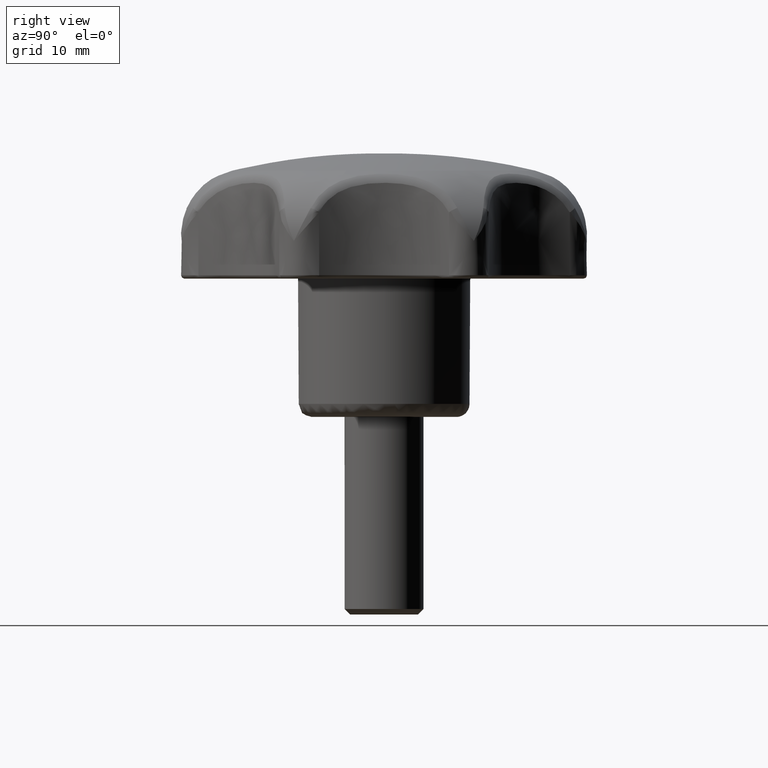
[diagram: clean part render]
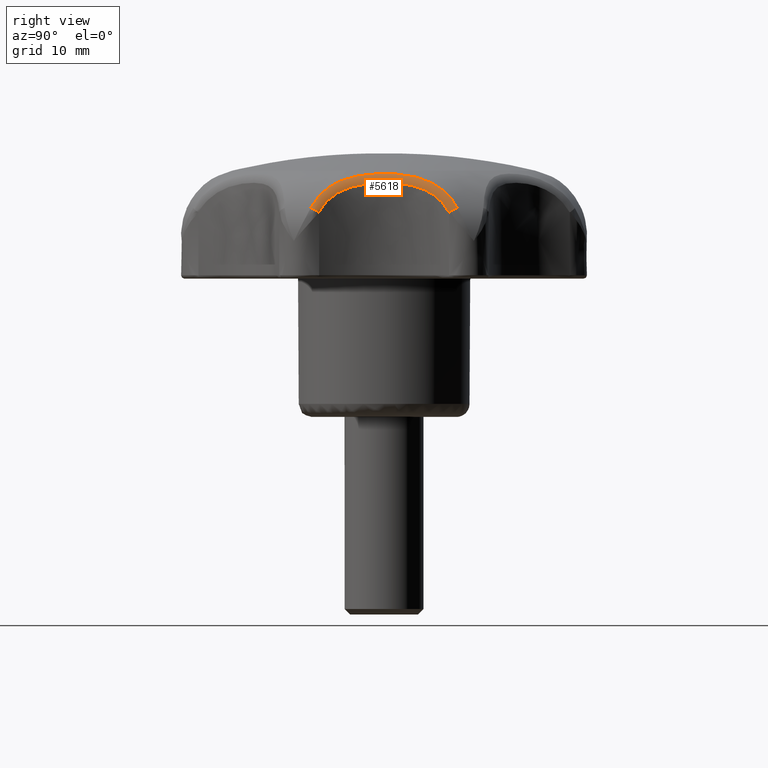
[diagram: same view with one face highlighted and labeled with its STEP entity id]
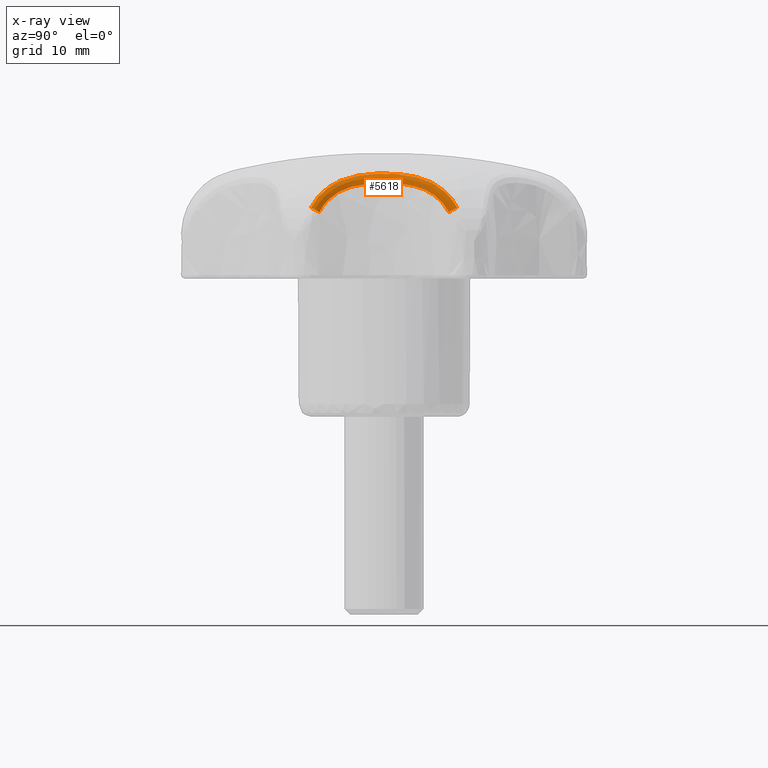
[diagram: x-ray of the same camera — body ghosted, the highlighted face saturated]
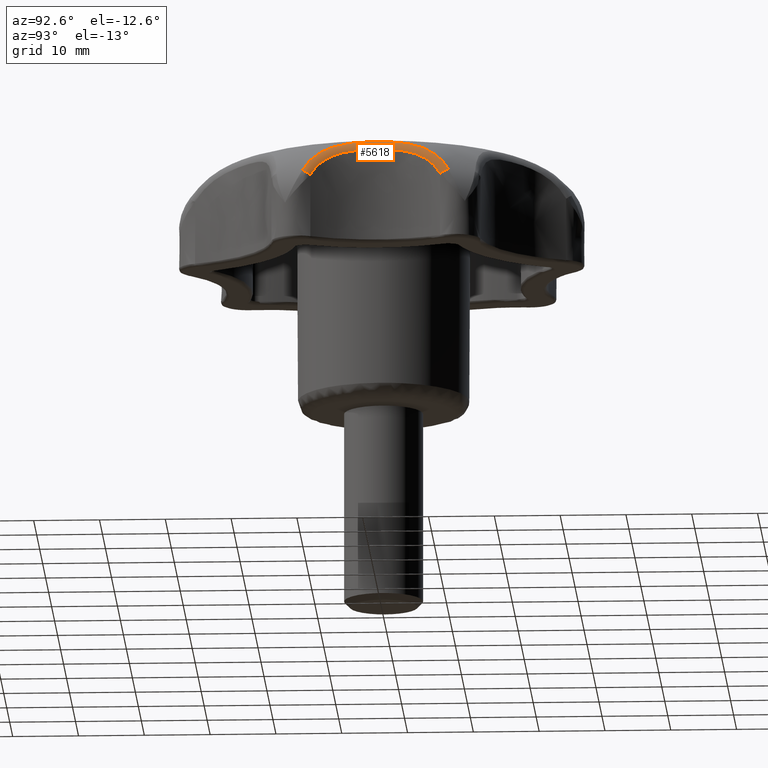
[diagram: same view with one face highlighted and labeled with its STEP entity id]
A machine part, right view. The second image highlights one B-rep face of the part: STEP entity #5618.
The next image is the same camera in x-ray: the body ghosted, the highlighted face saturated — about 0% of this face is hidden behind the body in this view.
A second angle (auxiliary view) of the same face is appended — the face is thin or edge-on in the first view.
In plain terms, the highlighted face is a freeform B-spline surface patch.
Its self-contained STEP definition (entity closure, byte-faithful):
#1544=CARTESIAN_POINT('',(28.153142153876001,-11.124537814935840,31.738453086347850));
#1545=VERTEX_POINT('',#1544);
#1569=CARTESIAN_POINT('',(25.774854229980559,-6.617860819175672,35.833077727599111));
#1570=VERTEX_POINT('',#1569);
#1571=CARTESIAN_POINT('',(28.153142153876001,-11.124537814935840,31.738453086347850));
#1572=CARTESIAN_POINT('',(27.983336311974639,-10.872890398628840,32.222789999707203));
#1573=CARTESIAN_POINT('',(27.796456010173440,-10.586079334655400,32.672247194585317));
#1574=CARTESIAN_POINT('',(27.498813905014941,-10.102483838967480,33.297504908314060));
#1575=CARTESIAN_POINT('',(27.396700256864172,-9.932345959672539,33.497730732627232));
#1576=CARTESIAN_POINT('',(27.240179358642930,-9.663304796960018,33.785921144808263));
#1577=CARTESIAN_POINT('',(27.187447468544491,-9.571316480585006,33.879958277067118));
#1578=CARTESIAN_POINT('',(27.081038538714381,-9.382627225881288,34.063985972793581));
#1579=CARTESIAN_POINT('',(27.027241024069632,-9.285704072014717,34.154170093536038));
#1580=CARTESIAN_POINT('',(26.757891316591351,-8.791891914974391,34.592453970331377));
#1581=CARTESIAN_POINT('',(26.542503512187999,-8.369892582188392,34.901046384835134));
#1582=CARTESIAN_POINT('',(26.228326285983400,-7.697462314954816,35.308921317555907));
#1583=CARTESIAN_POINT('',(26.125080763524320,-7.466728613753284,35.435679076649137));
#1584=CARTESIAN_POINT('',(25.973545457948301,-7.110729636869822,35.612817868846129));
#1585=CARTESIAN_POINT('',(25.923589575206481,-6.990412766921630,35.669696852874893));
#1586=CARTESIAN_POINT('',(25.840765662339479,-6.785515028995780,35.761709269993979));
#1587=CARTESIAN_POINT('',(25.807579797583291,-6.701898491574642,35.797936076928693));
#1588=CARTESIAN_POINT('',(25.774854229980559,-6.617860819175672,35.833077727599111));
#1589=B_SPLINE_CURVE_WITH_KNOTS('',3,(#1571,#1572,#1573,#1574,#1575,#1576,#1577,#1578,#1579,#1580,#1581,#1582,#1583,#1584,#1585,#1586,#1587,#1588),.UNSPECIFIED.,.F.,.U.,(4,2,2,2,2,2,2,2,4),(0.0,0.062500000000000,0.093749999999999,0.109375000000000,0.125000000000000,0.187500000000000,0.218750000000000,0.234375000000000,0.244997817542193),.UNSPECIFIED.);
#1590=EDGE_CURVE('',#1545,#1570,#1589,.T.);
#1698=CARTESIAN_POINT('',(28.153141974699800,11.124537656981079,31.738453520942549));
#1699=VERTEX_POINT('',#1698);
#1700=CARTESIAN_POINT('',(25.774854229980559,-6.617860819175672,35.833077727599111));
#1701=CARTESIAN_POINT('',(25.759444087181599,-6.578288279672262,35.849625581708111));
#1702=CARTESIAN_POINT('',(25.744136009617922,-6.538622358662484,35.865932815734503));
#1703=CARTESIAN_POINT('',(25.539115727425258,-6.002470097884818,36.082641064061058));
#1704=CARTESIAN_POINT('',(25.365743759401180,-5.492161543483544,36.246454383325641));
#1705=CARTESIAN_POINT('',(25.059363806589410,-4.445642713727366,36.516100361467089));
#1706=CARTESIAN_POINT('',(24.926344617561661,-3.909430726870049,36.621913810432439));
#1707=CARTESIAN_POINT('',(24.790041912448569,-3.223413730551197,36.724933486431887));
#1708=CARTESIAN_POINT('',(24.764280695744741,-3.085419815502458,36.744064345744007));
#1709=CARTESIAN_POINT('',(24.715879174474232,-2.807849632642465,36.779510222137581));
#1710=CARTESIAN_POINT('',(24.693207882287741,-2.668044984769865,36.795846994307503));
#1711=CARTESIAN_POINT('',(24.630422170415240,-2.248787242154130,36.840543205653020));
#1712=CARTESIAN_POINT('',(24.595434990322701,-1.969047619687009,36.864682583385623));
#1713=CARTESIAN_POINT('',(24.511276157202541,-1.129149064349501,36.921956625321897));
#1714=CARTESIAN_POINT('',(24.482922059215891,-0.568313907086514,36.940195809009751));
#1715=CARTESIAN_POINT('',(24.482482001313489,0.555122216129877,36.940484238180758));
#1716=CARTESIAN_POINT('',(24.510394662559641,1.117723002728837,36.922543310921910));
#1717=CARTESIAN_POINT('',(24.580649953096259,1.822123738192095,36.874747614525532));
#1718=CARTESIAN_POINT('',(24.596487490171420,1.963207343277363,36.863886216217452));
#1719=CARTESIAN_POINT('',(24.631592090166428,2.244666665727706,36.839508020985612));
#1720=CARTESIAN_POINT('',(24.650851021985680,2.385014533216566,36.825996987569063));
#1721=CARTESIAN_POINT('',(24.713649848589931,2.804906667139449,36.781300779169307));
#1722=CARTESIAN_POINT('',(24.762299468305802,3.083613074853640,36.745894720624868));
#1723=CARTESIAN_POINT('',(24.926080725294160,3.908432486312932,36.622126820652767));
#1724=CARTESIAN_POINT('',(25.059274317666230,4.445338261829134,36.516179784501652));
#1725=CARTESIAN_POINT('',(25.365862155421940,5.492556867876647,36.246349476116322));
#1726=CARTESIAN_POINT('',(25.539267901297599,6.002870658428257,36.082482534248953));
#1727=CARTESIAN_POINT('',(25.776402850242381,6.622998411859203,35.831826077213897));
#1728=CARTESIAN_POINT('',(25.824919091733971,6.746306189124715,35.779313071154689));
#1729=CARTESIAN_POINT('',(25.923548457033711,6.990309785242545,35.669743701602073));
#1730=CARTESIAN_POINT('',(25.973502107446151,7.110622034692645,35.612867566186210));
#1731=CARTESIAN_POINT('',(26.124988691813350,7.466513857009258,35.435789344361510));
#1732=CARTESIAN_POINT('',(26.228145442433210,7.697051720617301,35.309140989065170));
#1733=CARTESIAN_POINT('',(26.541869700071839,8.368574898784630,34.901900249015583));
#1734=CARTESIAN_POINT('',(26.756702235242528,8.789542015362175,34.594129395923929));
#1735=CARTESIAN_POINT('',(27.025045584979729,9.281718501726674,34.157806318389973));
#1736=CARTESIAN_POINT('',(27.078803061977680,9.378622265979143,34.067778866765330));
#1737=CARTESIAN_POINT('',(27.185637767297020,9.568144044221878,33.883159277828021));
#1738=CARTESIAN_POINT('',(27.238565023425590,9.660503476546126,33.788836875987911));
#1739=CARTESIAN_POINT('',(27.395619581574032,9.930536743411459,33.499832525461663));
#1740=CARTESIAN_POINT('',(27.498018846873951,10.101174658498049,33.299119834326000));
#1741=CARTESIAN_POINT('',(27.796317832718699,10.585887203642709,32.672648422766123));
#1742=CARTESIAN_POINT('',(27.983365596759182,10.872933552375240,32.222706591728027));
#1743=CARTESIAN_POINT('',(28.153141974699800,11.124537656981079,31.738453520942549));
#1744=B_SPLINE_CURVE_WITH_KNOTS('',3,(#1700,#1701,#1702,#1703,#1704,#1705,#1706,#1707,#1708,#1709,#1710,#1711,#1712,#1713,#1714,#1715,#1716,#1717,#1718,#1719,#1720,#1721,#1722,#1723,#1724,#1725,#1726,#1727,#1728,#1729,#1730,#1731,#1732,#1733,#1734,#1735,#1736,#1737,#1738,#1739,#1740,#1741,#1742,#1743),.UNSPECIFIED.,.F.,.U.,(4,2,2,2,2,2,2,2,2,2,2,2,2,2,2,2,2,2,2,2,2,4),(0.244997817542193,0.250000000000000,0.312500000000000,0.375000000000001,0.390625000000001,0.406250000000001,0.437500000000001,0.500000000000001,0.562500000000001,0.578125000000001,0.593750000000001,0.625000000000001,0.687500000000002,0.750000000000002,0.765625000000002,0.781250000000002,0.812500000000002,0.875000000000002,0.890625000000002,0.906250000000002,0.937500000000001,1.0),.UNSPECIFIED.);
#1745=EDGE_CURVE('',#1570,#1699,#1744,.T.);
#5271=CARTESIAN_POINT('',(28.196289402870502,9.856706647020470,31.049571731975849));
#5272=VERTEX_POINT('',#5271);
#5273=CARTESIAN_POINT('',(28.153141974699778,11.124537656981071,31.738453520942532));
#5274=CARTESIAN_POINT('',(28.554587045992339,10.447161604288810,31.497791102452219));
#5275=CARTESIAN_POINT('',(28.196289402870502,9.856706647020470,31.049571731975849));
#5283=(BOUNDED_CURVE()B_SPLINE_CURVE(2,(#5273,#5274,#5275),.UNSPECIFIED.,.F.,.U.)CURVE()GEOMETRIC_REPRESENTATION_ITEM()QUASI_UNIFORM_CURVE()RATIONAL_B_SPLINE_CURVE((1.0,0.876621336626192,1.0))REPRESENTATION_ITEM(''));
#5284=EDGE_CURVE('',#1699,#5272,#5283,.T.);
#5319=CARTESIAN_POINT('',(28.226234984048009,-9.906097104292490,30.938719719100401));
#5320=CARTESIAN_POINT('',(28.215144676728563,-9.887806958336782,30.974283567835563));
#5321=CARTESIAN_POINT('',(28.204054371534681,-9.869516815886522,31.009847409754627));
#5322=CARTESIAN_POINT('',(28.054335458436352,-9.622600234224519,31.489958611802532));
#5323=CARTESIAN_POINT('',(27.901939561392343,-9.360479996064180,31.898246180000069));
#5324=CARTESIAN_POINT('',(27.661408351677352,-8.917418529664662,32.460620383877043));
#5325=CARTESIAN_POINT('',(27.579224944334022,-8.761372102470494,32.639697865719839));
#5326=CARTESIAN_POINT('',(27.412212943534197,-8.432198580592379,32.981429784780275));
#5327=CARTESIAN_POINT('',(27.326944540282344,-8.258114473730569,33.144845159428606));
#5328=CARTESIAN_POINT('',(27.073087615704253,-7.717675619810350,33.603966225421821));
#5329=CARTESIAN_POINT('',(26.906666791873462,-7.333884834304054,33.868942771648321));
#5330=CARTESIAN_POINT('',(26.668376366924981,-6.725389300409965,34.214601772781513));
#5331=CARTESIAN_POINT('',(26.590823710027315,-6.517075583686117,34.321153944385436));
#5332=CARTESIAN_POINT('',(26.440553637426035,-6.089779617877964,34.518280055311720));
#5333=CARTESIAN_POINT('',(26.367863042617806,-5.870737349400206,34.608780871719844));
#5334=CARTESIAN_POINT('',(26.024142205636110,-4.767158252476402,35.018841740294022));
#5335=CARTESIAN_POINT('',(25.807539465700746,-3.844293833237729,35.220993222182436));
#5336=CARTESIAN_POINT('',(25.587227849989183,-2.412667592154802,35.414665926946320));
#5337=CARTESIAN_POINT('',(25.531492227194310,-1.927913392580010,35.460106843632808));
#5338=CARTESIAN_POINT('',(25.457924269338029,-0.964041213379985,35.519141640833311));
#5339=CARTESIAN_POINT('',(25.439620140682248,-0.482233436684587,35.533134470170843));
#5340=CARTESIAN_POINT('',(25.439591875673898,0.481118506455250,35.533156438222534));
#5341=CARTESIAN_POINT('',(25.457868157715811,0.962661844064270,35.519184197343947));
#5342=CARTESIAN_POINT('',(25.531255445898577,1.925452771158395,35.460299309193751));
#5343=CARTESIAN_POINT('',(25.586718622899397,2.408860053780830,35.415098096903854));
#5344=CARTESIAN_POINT('',(25.807203799888082,3.843105021507139,35.221319134757877));
#5345=CARTESIAN_POINT('',(26.024046945368724,4.766731456565069,35.018923403558766));
#5346=CARTESIAN_POINT('',(26.367612210917329,5.869962180268328,34.609088094278952));
#5347=CARTESIAN_POINT('',(26.440246651851712,6.088873379481462,34.518669594179286));
#5348=CARTESIAN_POINT('',(26.590516760069960,6.516235948229526,34.321569719964110));
#5349=CARTESIAN_POINT('',(26.668030024783931,6.724467419764784,34.215082467606010));
#5350=CARTESIAN_POINT('',(26.906058354522663,7.332405761488590,33.869868583815766));
#5351=CARTESIAN_POINT('',(27.072108631445591,7.715408728446322,33.605511513907572));
#5352=CARTESIAN_POINT('',(27.325073512285531,8.254221303434592,33.148340141793149));
#5353=CARTESIAN_POINT('',(27.410457130563611,8.428669473466563,32.984896715672122));
#5354=CARTESIAN_POINT('',(27.578131423546022,8.759284142351509,32.642058984341212));
#5355=CARTESIAN_POINT('',(27.660587227818429,8.915882234994967,32.462473696330953));
#5356=CARTESIAN_POINT('',(27.901758191520685,9.360193193640262,31.898802511239928));
#5357=CARTESIAN_POINT('',(28.054338775533392,9.622605696273343,31.489947912060263));
#5358=CARTESIAN_POINT('',(28.204053947259130,9.869516116851766,31.009848775311578));
#5359=CARTESIAN_POINT('',(28.215143991210873,9.887805829142069,30.974285776142139));
#5360=CARTESIAN_POINT('',(28.226234037289448,9.906095544939934,30.938722770152523));
#5361=CARTESIAN_POINT('',(28.227922783465928,-9.908857634691216,30.940747546439333));
#5362=CARTESIAN_POINT('',(28.216823764774325,-9.890560089925144,30.976328345522774));
#5363=CARTESIAN_POINT('',(28.205724747146999,-9.872262546913639,31.011909141194252));
#5364=CARTESIAN_POINT('',(28.055888112328052,-9.625245886308099,31.492249552087021));
#5365=CARTESIAN_POINT('',(27.903375297282359,-9.363020377170917,31.900732662476816));
#5366=CARTESIAN_POINT('',(27.662666009644102,-8.919784681995649,32.463379478263846));
#5367=CARTESIAN_POINT('',(27.580422860622257,-8.763677544456444,32.642544234443683));
#5368=CARTESIAN_POINT('',(27.413291923656129,-8.434377772642625,32.984444140754356));
#5369=CARTESIAN_POINT('',(27.327964064516692,-8.260227816148255,33.147940572102172));
#5370=CARTESIAN_POINT('',(27.073934414717826,-7.719588482452048,33.607291816060297));
#5371=CARTESIAN_POINT('',(26.907405886218992,-7.335660169314295,33.872405039947040));
#5372=CARTESIAN_POINT('',(26.668969336158639,-6.726957883234520,34.218249037926583));
#5373=CARTESIAN_POINT('',(26.591370652577464,-6.518575394616848,34.324859311389616));
#5374=CARTESIAN_POINT('',(26.441014159638570,-6.091142881858909,34.522095238845480));
#5375=CARTESIAN_POINT('',(26.368283194427391,-5.872032868103744,34.612647737791939));
#5376=CARTESIAN_POINT('',(26.024378879471527,-4.768126870847994,35.022946649209082));
#5377=CARTESIAN_POINT('',(25.807680424074182,-3.845028388939686,35.225236989883058));
#5378=CARTESIAN_POINT('',(25.587280496137076,-2.413099178874715,35.419050771539133));
#5379=CARTESIAN_POINT('',(25.531524503458257,-1.928251788552043,35.464527004668973));
#5380=CARTESIAN_POINT('',(25.457930383700969,-0.964205305054308,35.523608203287303));
#5381=CARTESIAN_POINT('',(25.439620145491659,-0.482315415209321,35.537612597780367));
#5382=CARTESIAN_POINT('',(25.439591870870075,0.481200295319598,35.537634583620239));
#5383=CARTESIAN_POINT('',(25.457874253492893,0.962825699306778,35.523650795321657));
#5384=CARTESIAN_POINT('',(25.531287636351180,1.925790707998963,35.464719620021043));
#5385=CARTESIAN_POINT('',(25.586771074175658,2.409290875182311,35.419483263982976));
#5386=CARTESIAN_POINT('',(25.807344608079731,3.843839256557241,35.225563118245425));
#5387=CARTESIAN_POINT('',(26.024283578201999,4.767699967198369,35.023028372013030));
#5388=CARTESIAN_POINT('',(26.368032225181757,5.871257462687259,34.612955137478245));
#5389=CARTESIAN_POINT('',(26.440707001404586,6.090236359955471,34.522484998097376));
#5390=CARTESIAN_POINT('',(26.591063522245754,6.517735484856868,34.325275315178288));
#5391=CARTESIAN_POINT('',(26.668622787091188,6.726035696520848,34.218729994066138));
#5392=CARTESIAN_POINT('',(26.906797065264243,7.334180580323999,33.873331338987320));
#5393=CARTESIAN_POINT('',(27.072954796265115,7.717320778145869,33.608837905242261));
#5394=CARTESIAN_POINT('',(27.326091744985586,8.256333184838329,33.151437297783865));
#5395=CARTESIAN_POINT('',(27.411534874901889,8.430847322715184,32.987912783718187));
#5396=CARTESIAN_POINT('',(27.579328547622499,8.761588773946098,32.644906504788018));
#5397=CARTESIAN_POINT('',(27.661844283709858,8.918247786788790,32.465233691079348));
#5398=CARTESIAN_POINT('',(27.903193783292977,9.362733456581132,31.901289256743745));
#5399=CARTESIAN_POINT('',(28.055891431939973,9.625251350402666,31.492238846935159));
#5400=CARTESIAN_POINT('',(28.205724322541034,9.872261847601903,31.011910507441105));
#5401=CARTESIAN_POINT('',(28.216823078723291,9.890558960284400,30.976330554961471));
#5402=CARTESIAN_POINT('',(28.227921835970459,9.908856074722525,30.940750599067854));
#5403=CARTESIAN_POINT('',(28.593534839500169,-10.506845277132802,31.380016641334581));
#5404=CARTESIAN_POINT('',(28.580552548678192,-10.486951212535875,31.419273850018605));
#5405=CARTESIAN_POINT('',(28.567569989778221,-10.467056737136193,31.458531869344867));
#5406=CARTESIAN_POINT('',(28.392279201103815,-10.198441103658684,31.988594488164523));
#5407=CARTESIAN_POINT('',(28.214578644955509,-9.913661417968983,32.439690890154132));
#5408=CARTESIAN_POINT('',(27.935673956562404,-9.433420668132623,33.062313937242557));
#5409=CARTESIAN_POINT('',(27.840625024173377,-9.264447922639144,33.260810558628613));
#5410=CARTESIAN_POINT('',(27.648024748760179,-8.908462416096125,33.640219237333639));
#5411=CARTESIAN_POINT('',(27.549970272430450,-8.720418089570615,33.821981273074272));
#5412=CARTESIAN_POINT('',(27.258932698079661,-8.137487298288193,34.333826152336215));
#5413=CARTESIAN_POINT('',(27.069324866512666,-7.724596218246162,34.630910304971160));
#5414=CARTESIAN_POINT('',(26.799522902049674,-7.072311519665619,35.021264512254547));
#5415=CARTESIAN_POINT('',(26.712006255321906,-6.849379051377720,35.142128294777109));
#5416=CARTESIAN_POINT('',(26.542974693862828,-6.392972239924809,35.366784464845978));
#5417=CARTESIAN_POINT('',(26.461492432669733,-6.159439250095799,35.470498716242069));
#5418=CARTESIAN_POINT('',(26.077425839492381,-4.985228435715754,35.943001621565180));
#5419=CARTESIAN_POINT('',(25.839559992403231,-4.011157708686216,36.185020215835941));
#5420=CARTESIAN_POINT('',(25.599309359246277,-2.511710336243460,36.420922655516165));
#5421=CARTESIAN_POINT('',(25.538920031504954,-2.005789167332553,36.477327773166138));
#5422=CARTESIAN_POINT('',(25.459336736264913,-1.001947707514869,36.550953426314244));
#5423=CARTESIAN_POINT('',(25.439621252802148,-0.501190004166548,36.568648691707672));
#5424=CARTESIAN_POINT('',(25.439590764840389,0.500031245838609,36.568676340627199));
#5425=CARTESIAN_POINT('',(25.459276335490209,1.000513836883770,36.551007360233662));
#5426=CARTESIAN_POINT('',(25.538663591422374,2.003223821014502,36.477566953501132));
#5427=CARTESIAN_POINT('',(25.598755707986307,2.507729599716078,36.421453576166044));
#5428=CARTESIAN_POINT('',(25.839190643383883,4.009898312170161,36.185408184043595));
#5429=CARTESIAN_POINT('',(26.077321568050404,4.984778283971790,35.943100503198863));
#5430=CARTESIAN_POINT('',(26.461211614309210,6.158613475975416,35.470851531899179));
#5431=CARTESIAN_POINT('',(26.542630145241219,6.392005426584975,35.367229953093840));
#5432=CARTESIAN_POINT('',(26.711660220627007,6.848481052779707,35.142600595043817));
#5433=CARTESIAN_POINT('',(26.799131818080244,7.071324655101093,35.021809302578149));
#5434=CARTESIAN_POINT('',(27.068633861916972,7.723008004639336,34.631951964107301));
#5435=CARTESIAN_POINT('',(27.257817579939520,8.135048887169887,34.335559162774409));
#5436=CARTESIAN_POINT('',(27.547821626724243,8.716215502376372,33.825872553602281));
#5437=CARTESIAN_POINT('',(27.646003070366998,8.904648358064081,33.644072140853190));
#5438=CARTESIAN_POINT('',(27.839360871177785,9.262187433901453,33.263428321122753));
#5439=CARTESIAN_POINT('',(27.934723079453978,9.431756318251292,33.064366990040732));
#5440=CARTESIAN_POINT('',(28.214365866420085,9.913348837817125,32.440304451427515));
#5441=CARTESIAN_POINT('',(28.392283092904503,10.198447057529027,31.988582651309084));
#5442=CARTESIAN_POINT('',(28.567569491289952,10.467055974046689,31.458533382198681));
#5443=CARTESIAN_POINT('',(28.580551742420209,10.486949978613941,31.419276299011500));
#5444=CARTESIAN_POINT('',(28.593533725311623,10.506843572131931,31.380020026952874));
#5445=CARTESIAN_POINT('',(28.194751483232334,-11.191780468982504,31.615828553203240));
#5446=CARTESIAN_POINT('',(28.180294073705788,-11.170357785961878,31.657055680999992));
#5447=CARTESIAN_POINT('',(28.165836665490250,-11.148935104883837,31.698282805058334));
#5448=CARTESIAN_POINT('',(27.970661781565113,-10.859729098493816,32.254848617732243));
#5449=CARTESIAN_POINT('',(27.771540304378483,-10.553475230423775,32.728151627143347));
#5450=CARTESIAN_POINT('',(27.456145829867491,-10.037965132895200,33.380079540146099));
#5451=CARTESIAN_POINT('',(27.348208120395501,-9.856723222128048,33.587673485439325));
#5452=CARTESIAN_POINT('',(27.128438861794713,-9.475237508058221,33.983823096432417));
#5453=CARTESIAN_POINT('',(27.016025479794834,-9.273890988089727,34.173260764231067));
#5454=CARTESIAN_POINT('',(26.680656702787527,-8.650299595343306,34.705491592361362));
#5455=CARTESIAN_POINT('',(26.459858837225546,-8.209354343670054,35.012662547747198));
#5456=CARTESIAN_POINT('',(26.142293821452689,-7.513900324603762,35.413364601831105));
#5457=CARTESIAN_POINT('',(26.038698192243718,-7.276393274112722,35.536883936578164));
#5458=CARTESIAN_POINT('',(25.837506626873836,-6.790479065055471,35.765400025374504));
#5459=CARTESIAN_POINT('',(25.739944558501108,-6.542010864630250,35.870312029739580));
#5460=CARTESIAN_POINT('',(25.277594011443174,-5.293364018045355,36.345666235979117));
#5461=CARTESIAN_POINT('',(24.982742722977846,-4.259566310182666,36.580011324008844));
#5462=CARTESIAN_POINT('',(24.681549627582871,-2.667682044829040,36.804527472542169));
#5463=CARTESIAN_POINT('',(24.605048187413949,-2.130499981125298,36.857205389889202));
#5464=CARTESIAN_POINT('',(24.503977656270358,-1.064369869885683,36.925641884869847));
#5465=CARTESIAN_POINT('',(24.478766381405233,-0.532417775405045,36.941863365012971));
#5466=CARTESIAN_POINT('',(24.478727483662137,0.531186817837314,36.941888831701633));
#5467=CARTESIAN_POINT('',(24.503900341207686,1.062846727950948,36.925691219641628));
#5468=CARTESIAN_POINT('',(24.604723112382636,2.127775750660873,36.857428507229827));
#5469=CARTESIAN_POINT('',(24.680852155143011,2.663455693160975,36.805028465380190));
#5470=CARTESIAN_POINT('',(24.982286423569494,4.258229715755705,36.580389132346035));
#5471=CARTESIAN_POINT('',(25.277464042142643,5.292886422513718,36.345760906840376));
#5472=CARTESIAN_POINT('',(25.739607607946301,6.541132468198946,35.870668174050039));
#5473=CARTESIAN_POINT('',(25.837094970956578,6.789450184149986,35.765851593600331));
#5474=CARTESIAN_POINT('',(26.038287867974049,7.275436782012489,35.537365919411435));
#5475=CARTESIAN_POINT('',(26.141831377314944,7.512848798043786,35.413921842189779));
#5476=CARTESIAN_POINT('',(26.459049740484680,8.207659724520424,35.013735787260153));
#5477=CARTESIAN_POINT('',(26.679357645003648,8.647695638362910,34.707282956544880));
#5478=CARTESIAN_POINT('',(27.013556490440116,9.269393021720440,34.177312289982432));
#5479=CARTESIAN_POINT('',(27.126126036532860,9.471152141438747,33.987842102015883));
#5480=CARTESIAN_POINT('',(27.346771501967254,9.854298938647771,33.590410589659321));
#5481=CARTESIAN_POINT('',(27.455068249274333,10.036179265695123,33.382227975878550));
#5482=CARTESIAN_POINT('',(27.771304258978066,10.553138275416384,32.728796546773616));
#5483=CARTESIAN_POINT('',(27.970666216237248,10.859735660132365,32.254835897613880));
#5484=CARTESIAN_POINT('',(28.165836103557215,11.148934272988594,31.698284413408455));
#5485=CARTESIAN_POINT('',(28.180293162370383,11.170356437094764,31.657058291642389));
#5486=CARTESIAN_POINT('',(28.194750222495330,11.191778603144691,31.615832166135682));
#5487=CARTESIAN_POINT('',(28.193010065989395,-11.194771461296110,31.616858302622251));
#5488=CARTESIAN_POINT('',(28.178546233081409,-11.173342071983734,31.658094021896961));
#5489=CARTESIAN_POINT('',(28.164082402794964,-11.151912686555359,31.699329733697905));
#5490=CARTESIAN_POINT('',(27.968820949179822,-10.862616361449474,32.256011115299266));
#5491=CARTESIAN_POINT('',(27.769606835282222,-10.556267449788239,32.729410502209866));
#5492=CARTESIAN_POINT('',(27.454056209992633,-10.040599531293287,33.381464254164754));
#5493=CARTESIAN_POINT('',(27.346063676924143,-9.859302542394064,33.589096952148239));
#5494=CARTESIAN_POINT('',(27.126179616515593,-9.477701939796990,33.985317142779806));
#5495=CARTESIAN_POINT('',(27.013705974267030,-9.276295325514356,34.174786754806874));
#5496=CARTESIAN_POINT('',(26.678152813420724,-8.652520032069413,34.707100874349337));
#5497=CARTESIAN_POINT('',(26.457227239221702,-8.211447468559550,35.014310906132657));
#5498=CARTESIAN_POINT('',(26.139470052347225,-7.515797600396180,35.415049250535588));
#5499=CARTESIAN_POINT('',(26.035810510025421,-7.278224651821649,35.538576963752391));
#5500=CARTESIAN_POINT('',(25.834492468846580,-6.792177438722415,35.767103136185249));
#5501=CARTESIAN_POINT('',(25.736867873501506,-6.543642152573643,35.872016836403574));
#5502=CARTESIAN_POINT('',(25.274218332017934,-5.294664500107941,36.347365676544626));
#5503=CARTESIAN_POINT('',(24.979158943276019,-4.260605320174133,36.581663439537266));
#5504=CARTESIAN_POINT('',(24.677749941012387,-2.668327795112080,36.806115663896954));
#5505=CARTESIAN_POINT('',(24.601192705314450,-2.131014848677242,36.858773711453424));
#5506=CARTESIAN_POINT('',(24.500048477747846,-1.064626598297914,36.927182894815559));
#5507=CARTESIAN_POINT('',(24.474818548909930,-0.532546079911501,36.943396779744830));
#5508=CARTESIAN_POINT('',(24.474779622613262,0.531314825506624,36.943422235137199));
#5509=CARTESIAN_POINT('',(24.499971105243159,1.063103088419307,36.927232205917718));
#5510=CARTESIAN_POINT('',(24.600867393509755,2.128289956048231,36.858996743530433));
#5511=CARTESIAN_POINT('',(24.677051966935672,2.664100410639240,36.806616493627907));
#5512=CARTESIAN_POINT('',(24.978702328840701,4.259268388753238,36.582041182951102));
#5513=CARTESIAN_POINT('',(25.274088268246899,5.294186783362322,36.347460322593058));
#5514=CARTESIAN_POINT('',(25.736530705541163,6.542763520128815,35.872372982749802));
#5515=CARTESIAN_POINT('',(25.834080550945966,6.791148278694366,35.767554716412086));
#5516=CARTESIAN_POINT('',(26.035399931085500,7.277267895504699,35.539058975768832));
#5517=CARTESIAN_POINT('',(26.139007323757980,7.514745781141665,35.415606531174511));
#5518=CARTESIAN_POINT('',(26.456417662734594,8.209752365984665,35.015384263115990));
#5519=CARTESIAN_POINT('',(26.676853000513479,8.649915321668932,34.708892464646816));
#5520=CARTESIAN_POINT('',(27.011235644694178,9.271796022787347,34.178838942877626));
#5521=CARTESIAN_POINT('',(27.123865565924326,9.473615349214065,33.989336843738897));
#5522=CARTESIAN_POINT('',(27.344626325875076,9.856877523414848,33.591834563843214));
#5523=CARTESIAN_POINT('',(27.452978089098920,10.038813119655003,33.383613097703879));
#5524=CARTESIAN_POINT('',(27.769370688179425,10.555930388641846,32.730055558797773));
#5525=CARTESIAN_POINT('',(27.968825386371645,10.862622925507248,32.255998391230115));
#5526=CARTESIAN_POINT('',(28.164081840573772,11.151911854378541,31.699331342471670));
#5527=CARTESIAN_POINT('',(28.178545321264718,11.173340722653004,31.658096633258573));
#5528=CARTESIAN_POINT('',(28.193008804578746,11.194769594813774,31.616861916567192));
#5536=(BOUNDED_SURFACE()B_SPLINE_SURFACE(3,2,((#5319,#5361,#5403,#5445,#5487),(#5320,#5362,#5404,#5446,#5488),(#5321,#5363,#5405,#5447,#5489),(#5322,#5364,#5406,#5448,#5490),(#5323,#5365,#5407,#5449,#5491),(#5324,#5366,#5408,#5450,#5492),(#5325,#5367,#5409,#5451,#5493),(#5326,#5368,#5410,#5452,#5494),(#5327,#5369,#5411,#5453,#5495),(#5328,#5370,#5412,#5454,#5496),(#5329,#5371,#5413,#5455,#5497),(#5330,#5372,#5414,#5456,#5498),(#5331,#5373,#5415,#5457,#5499),(#5332,#5374,#5416,#5458,#5500),(#5333,#5375,#5417,#5459,#5501),(#5334,#5376,#5418,#5460,#5502),(#5335,#5377,#5419,#5461,#5503),(#5336,#5378,#5420,#5462,#5504),(#5337,#5379,#5421,#5463,#5505),(#5338,#5380,#5422,#5464,#5506),(#5339,#5381,#5423,#5465,#5507),(#5340,#5382,#5424,#5466,#5508),(#5341,#5383,#5425,#5467,#5509),(#5342,#5384,#5426,#5468,#5510),(#5343,#5385,#5427,#5469,#5511),(#5344,#5386,#5428,#5470,#5512),(#5345,#5387,#5429,#5471,#5513),(#5346,#5388,#5430,#5472,#5514),(#5347,#5389,#5431,#5473,#5515),(#5348,#5390,#5432,#5474,#5516),(#5349,#5391,#5433,#5475,#5517),(#5350,#5392,#5434,#5476,#5518),(#5351,#5393,#5435,#5477,#5519),(#5352,#5394,#5436,#5478,#5520),(#5353,#5395,#5437,#5479,#5521),(#5354,#5396,#5438,#5480,#5522),(#5355,#5397,#5439,#5481,#5523),(#5356,#5398,#5440,#5482,#5524),(#5357,#5399,#5441,#5483,#5525),(#5358,#5400,#5442,#5484,#5526),(#5359,#5401,#5443,#5485,#5527),(#5360,#5402,#5444,#5486,#5528)),.UNSPECIFIED.,.F.,.F.,.U.)B_SPLINE_SURFACE_WITH_KNOTS((4,2,2,2,2,2,2,2,2,2,2,2,2,2,2,2,2,2,2,2,4),(3,1,1,3),(0.0,0.146011148407167,1.971150516902670,2.883720201150421,3.796289885398173,5.621429253893676,6.533998938141427,7.446568622389179,11.096847359380190,12.921986727875691,14.747126096371190,16.572265464866700,18.397404833362199,22.047683570353211,22.960253254600961,23.872822938848710,25.697962307344209,26.610531991591969,27.523101675839719,29.348241044335222,29.494252418648689),(0.0,0.009832813268619,1.864813477061413,1.874111440878174),.UNSPECIFIED.)GEOMETRIC_REPRESENTATION_ITEM()RATIONAL_B_SPLINE_SURFACE(((1.001307714185543,1.000653857092771,0.876648500196239,1.000618290963515,1.001236581927030),(1.001307810139911,1.000653905069955,0.876639449200715,1.000618336331012,1.001236672662024),(1.001307906094279,1.000653953047140,0.876630398205192,1.000618381698508,1.001236763397017),(1.001309201478260,1.000654600739130,0.876508209764788,1.000618994159716,1.001237988319432),(1.001313437838965,1.000656718919482,0.876108610637955,1.000620997123033,1.001241994246065),(1.001327053984709,1.000663526992355,0.874824253537845,1.000627434875230,1.001254869750460),(1.001332800995189,1.000666400497594,0.874282160800890,1.000630152078030,1.001260304156060),(1.001347083889372,1.000673541944686,0.872934911961188,1.000636905070775,1.001273810141549),(1.001355677202735,1.000677838601368,0.872124338746259,1.000640968013624,1.001281936027247),(1.001385579066576,1.000692789533288,0.869303814359204,1.000655105699373,1.001310211398745),(1.001410997972454,1.000705498986227,0.866906149641484,1.000667123829925,1.001334247659851),(1.001456154554151,1.000728077277076,0.862646708136659,1.000688473989398,1.001376947978797),(1.001472358675505,1.000736179337753,0.861118237547221,1.000696135343780,1.001392270687559),(1.001506618399834,1.000753309199917,0.857886653439951,1.000712333438286,1.001424666876573),(1.001524680918371,1.000762340459186,0.856182887604567,1.000720873448109,1.001441746896218),(1.001616543731994,1.000808271865997,0.847517832226391,1.000764306446064,1.001528612892127),(1.001696390272277,1.000848195136139,0.839986224320822,1.000802058116016,1.001604116232033),(1.001786106020660,1.000893053010330,0.831523693103097,1.000844475975456,1.001688951950913),(1.001810779493817,1.000905389746908,0.829196342101703,1.000856141663311,1.001712283326621),(1.001843966860772,1.000921983430386,0.826065909218301,1.000871832744220,1.001743665488440),(1.001852646552272,1.000926323276136,0.825247188295847,1.000875936526896,1.001751873053793),(1.001852659738673,1.000926329869336,0.825245944474872,1.000875942761464,1.001751885522928),(1.001843993658455,1.000921996829228,0.826063381498987,1.000871845414240,1.001743690828481),(1.001810884829695,1.000905442414847,0.829186406185526,1.000856191466412,1.001712382932823),(1.001786321829150,1.000893160914575,0.831503336742968,1.000844578010320,1.001689156020641),(1.001696510158076,1.000848255079038,0.839974915968286,1.000802114798361,1.001604229596721),(1.001616580646543,1.000808290323271,0.847514350223242,1.000764323899366,1.001528647798733),(1.001524745098173,1.000762372549086,0.856176833778106,1.000720903792500,1.001441807585001),(1.001506692398205,1.000753346199103,0.857879673466728,1.000712368424925,1.001424736849850),(1.001472424663205,1.000736212331603,0.861112013188810,1.000696166542951,1.001392333085902),(1.001456225656012,1.000728112828006,0.862640001379803,1.000688507606559,1.001377015213118),(1.001411102378846,1.000705551189423,0.866896301400039,1.000667173193563,1.001334346387125),(1.001385729793830,1.000692864896915,0.869289596854212,1.000655176963645,1.001310353927290),(1.001355880132608,1.000677940066304,0.872105197175047,1.000641063959441,1.001282127918883),(1.001347248766670,1.000673624383335,0.872919359738691,1.000636983025227,1.001273966050454),(1.001332880041248,1.000666440020624,0.874274704699176,1.000630189451230,1.001260378902461),(1.001327106020724,1.000663553010362,0.874819345186710,1.000627459478005,1.001254918956010),(1.001313437062000,1.000656718531000,0.876108683925948,1.000620996755682,1.001241993511363),(1.001309202225995,1.000654601112998,0.876508139233848,1.000618994513248,1.001237989026495),(1.001307906035849,1.000653953017924,0.876630403716706,1.000618381670882,1.001236763341765),(1.001307810021627,1.000653905010813,0.876639460357978,1.000618336275087,1.001236672550174),(1.001307714007405,1.000653857003703,0.876648516999251,1.000618290879291,1.001236581758583)))REPRESENTATION_ITEM('')SURFACE());
#5537=CARTESIAN_POINT('',(28.196289599395701,-9.856706863785160,31.049571333828251));
#5538=VERTEX_POINT('',#5537);
#5539=CARTESIAN_POINT('',(28.153142153876011,-11.124537814935840,31.738453086347882));
#5540=CARTESIAN_POINT('',(28.554587192127769,-10.447161801062075,31.497790677490649));
#5541=CARTESIAN_POINT('',(28.196289599395701,-9.856706863785160,31.049571333828251));
#5549=(BOUNDED_CURVE()B_SPLINE_CURVE(2,(#5539,#5540,#5541),.UNSPECIFIED.,.F.,.U.)CURVE()GEOMETRIC_REPRESENTATION_ITEM()QUASI_UNIFORM_CURVE()RATIONAL_B_SPLINE_CURVE((1.0,0.876621349164251,1.0))REPRESENTATION_ITEM(''));
#5550=EDGE_CURVE('',#1545,#5538,#5549,.T.);
#5551=ORIENTED_EDGE('',*,*,#5550,.T.);
#5552=CARTESIAN_POINT('',(28.196289402870502,9.856706647020470,31.049571731975849));
#5553=CARTESIAN_POINT('',(28.062811725324920,9.636742694334293,31.477337266941610));
#5554=CARTESIAN_POINT('',(27.915430418152621,9.383944872679322,31.875114197680649));
#5555=CARTESIAN_POINT('',(27.680724935609771,8.953580595377712,32.428310503226122));
#5556=CARTESIAN_POINT('',(27.600211437058810,8.801559572777965,32.605433548170261));
#5557=CARTESIAN_POINT('',(27.476931873376490,8.560131512650406,32.860168044141133));
#5558=CARTESIAN_POINT('',(27.435417710679090,8.477414468098694,32.943259276261273));
#5559=CARTESIAN_POINT('',(27.351724260715070,8.307422771643442,33.105744914702640));
#5560=CARTESIAN_POINT('',(27.309870789941339,8.220808805204781,33.184508648207490));
#5561=CARTESIAN_POINT('',(27.100991141664078,7.779771670787556,33.566387413992508));
#5562=CARTESIAN_POINT('',(26.935166618407791,7.401499631540711,33.833788267599090));
#5563=CARTESIAN_POINT('',(26.695849501513688,6.797499837242240,34.184891766767201));
#5564=CARTESIAN_POINT('',(26.617639420228191,6.590057428064558,34.293572362118013));
#5565=CARTESIAN_POINT('',(26.503563130558529,6.269864719791340,34.444835496921321));
#5566=CARTESIAN_POINT('',(26.466009142866760,6.161423989312171,34.493381969910729));
#5567=CARTESIAN_POINT('',(26.392459251276041,5.942543545388907,34.586263887483213));
#5568=CARTESIAN_POINT('',(26.356540246015879,5.832346384522807,34.630508171337283));
#5569=CARTESIAN_POINT('',(26.181397612176742,5.277720062521055,34.841480792693012));
#5570=CARTESIAN_POINT('',(26.055563945290949,4.822411145370376,34.977659418756552));
#5571=CARTESIAN_POINT('',(25.836258794996780,3.891545232218511,35.200170164592230));
#5572=CARTESIAN_POINT('',(25.742769508601839,3.415987583606694,35.286482929494433));
#5573=CARTESIAN_POINT('',(25.648162867937490,2.810107940418050,35.369979753249417));
#5574=CARTESIAN_POINT('',(25.630336396645120,2.688228840426102,35.385463601789183));
#5575=CARTESIAN_POINT('',(25.597037479394711,2.443933071195384,35.414028333408602));
#5576=CARTESIAN_POINT('',(25.581597357248491,2.321774731291900,35.427082289347453));
#5577=CARTESIAN_POINT('',(25.538880278533220,1.955269468311012,35.462813645727607));
#5578=CARTESIAN_POINT('',(25.515205240929578,1.710892361691746,35.482074024820150));
#5579=CARTESIAN_POINT('',(25.458441825301211,0.977646984311117,35.527703248492912));
#5580=CARTESIAN_POINT('',(25.439594157872872,0.488665541044837,35.542119242576682));
#5581=CARTESIAN_POINT('',(25.439617853274711,-0.489585984557392,35.542100808759180));
#5582=CARTESIAN_POINT('',(25.458488709553979,-0.978856058227859,35.527667978200917));
#5583=CARTESIAN_POINT('',(25.515391020631281,-1.712988794106914,35.481923470497371));
#5584=CARTESIAN_POINT('',(25.539129800152331,-1.957737866401104,35.462609381858847));
#5585=CARTESIAN_POINT('',(25.581983636811842,-2.324922222574988,35.426756913655780));
#5586=CARTESIAN_POINT('',(25.597502776657208,-2.447512661431609,35.413632785460827));
#5587=CARTESIAN_POINT('',(25.630819129615539,-2.691599630596210,35.385045799371191));
#5588=CARTESIAN_POINT('',(25.648611534581210,-2.813096295781911,35.369587507869191));
#5589=CARTESIAN_POINT('',(25.743124720116661,-3.417795788347068,35.286154281964947));
#5590=CARTESIAN_POINT('',(25.836507738768990,-3.892687296235938,35.199927061918643));
#5591=CARTESIAN_POINT('',(26.055672464610868,-4.822786235122593,34.977539817805628));
#5592=CARTESIAN_POINT('',(26.181471934045621,-5.277995015990793,34.841402188653788));
#5593=CARTESIAN_POINT('',(26.356704962998641,-5.832858070531502,34.630307019485222));
#5594=CARTESIAN_POINT('',(26.392648717828841,-5.943120653347689,34.586029107560442));
#5595=CARTESIAN_POINT('',(26.466263692818430,-6.162168169859967,34.493055999847670));
#5596=CARTESIAN_POINT('',(26.503782356685090,-6.270491808574700,34.444549654311942));
#5597=CARTESIAN_POINT('',(26.617869238279180,-6.590678867757003,34.293257890063103));
#5598=CARTESIAN_POINT('',(26.696130763051130,-6.798241969919045,34.184498607478858));
#5599=CARTESIAN_POINT('',(26.935758168858531,-7.402927837510666,33.832881297292289));
#5600=CARTESIAN_POINT('',(27.102002064002360,-7.782091392480175,33.564776451091547));
#5601=CARTESIAN_POINT('',(27.311686043784309,-8.224594155100959,33.181129181152727));
#5602=CARTESIAN_POINT('',(27.353773026335670,-8.311630426603974,33.101839530577742));
#5603=CARTESIAN_POINT('',(27.437098897245662,-8.480780681823610,32.939919886207939));
#5604=CARTESIAN_POINT('',(27.478437490300550,-8.563110432228918,32.857114620296407));
#5605=CARTESIAN_POINT('',(27.601243532266519,-8.803518578448996,32.603182707142800));
#5606=CARTESIAN_POINT('',(27.681500060366009,-8.955023314979480,32.426545129337157));
#5607=CARTESIAN_POINT('',(27.915604386753142,-9.384220783245878,31.874580313790400));
#5608=CARTESIAN_POINT('',(28.062814775298211,-9.636747726694537,31.477327538301040));
#5609=CARTESIAN_POINT('',(28.196289599395701,-9.856706863785160,31.049571333828251));
#5610=B_SPLINE_CURVE_WITH_KNOTS('',3,(#5552,#5553,#5554,#5555,#5556,#5557,#5558,#5559,#5560,#5561,#5562,#5563,#5564,#5565,#5566,#5567,#5568,#5569,#5570,#5571,#5572,#5573,#5574,#5575,#5576,#5577,#5578,#5579,#5580,#5581,#5582,#5583,#5584,#5585,#5586,#5587,#5588,#5589,#5590,#5591,#5592,#5593,#5594,#5595,#5596,#5597,#5598,#5599,#5600,#5601,#5602,#5603,#5604,#5605,#5606,#5607,#5608,#5609),.UNSPECIFIED.,.F.,.U.,(4,2,2,2,2,2,2,2,2,2,2,2,2,2,2,2,2,2,2,2,2,2,2,2,2,2,2,2,4),(0.0,0.062500000000001,0.093750000000001,0.109375000000001,0.125000000000001,0.187500000000001,0.218750000000001,0.234375000000001,0.250000000000001,0.312500000000000,0.375000000000000,0.390625000000000,0.406250000000000,0.437500000000000,0.500000000000000,0.562500000000000,0.593750000000000,0.609375000000000,0.625000000000000,0.687500000000001,0.750000000000001,0.765625000000001,0.781250000000001,0.812500000000001,0.875000000000001,0.890625000000001,0.906250000000000,0.937500000000000,1.0),.UNSPECIFIED.);
#5611=EDGE_CURVE('',#5272,#5538,#5610,.T.);
#5612=ORIENTED_EDGE('',*,*,#5611,.F.);
#5613=ORIENTED_EDGE('',*,*,#5284,.F.);
#5614=ORIENTED_EDGE('',*,*,#1745,.F.);
#5615=ORIENTED_EDGE('',*,*,#1590,.F.);
#5616=EDGE_LOOP('',(#5551,#5612,#5613,#5614,#5615));
#5617=FACE_OUTER_BOUND('',#5616,.T.);
#5618=ADVANCED_FACE('',(#5617),#5536,.T.);